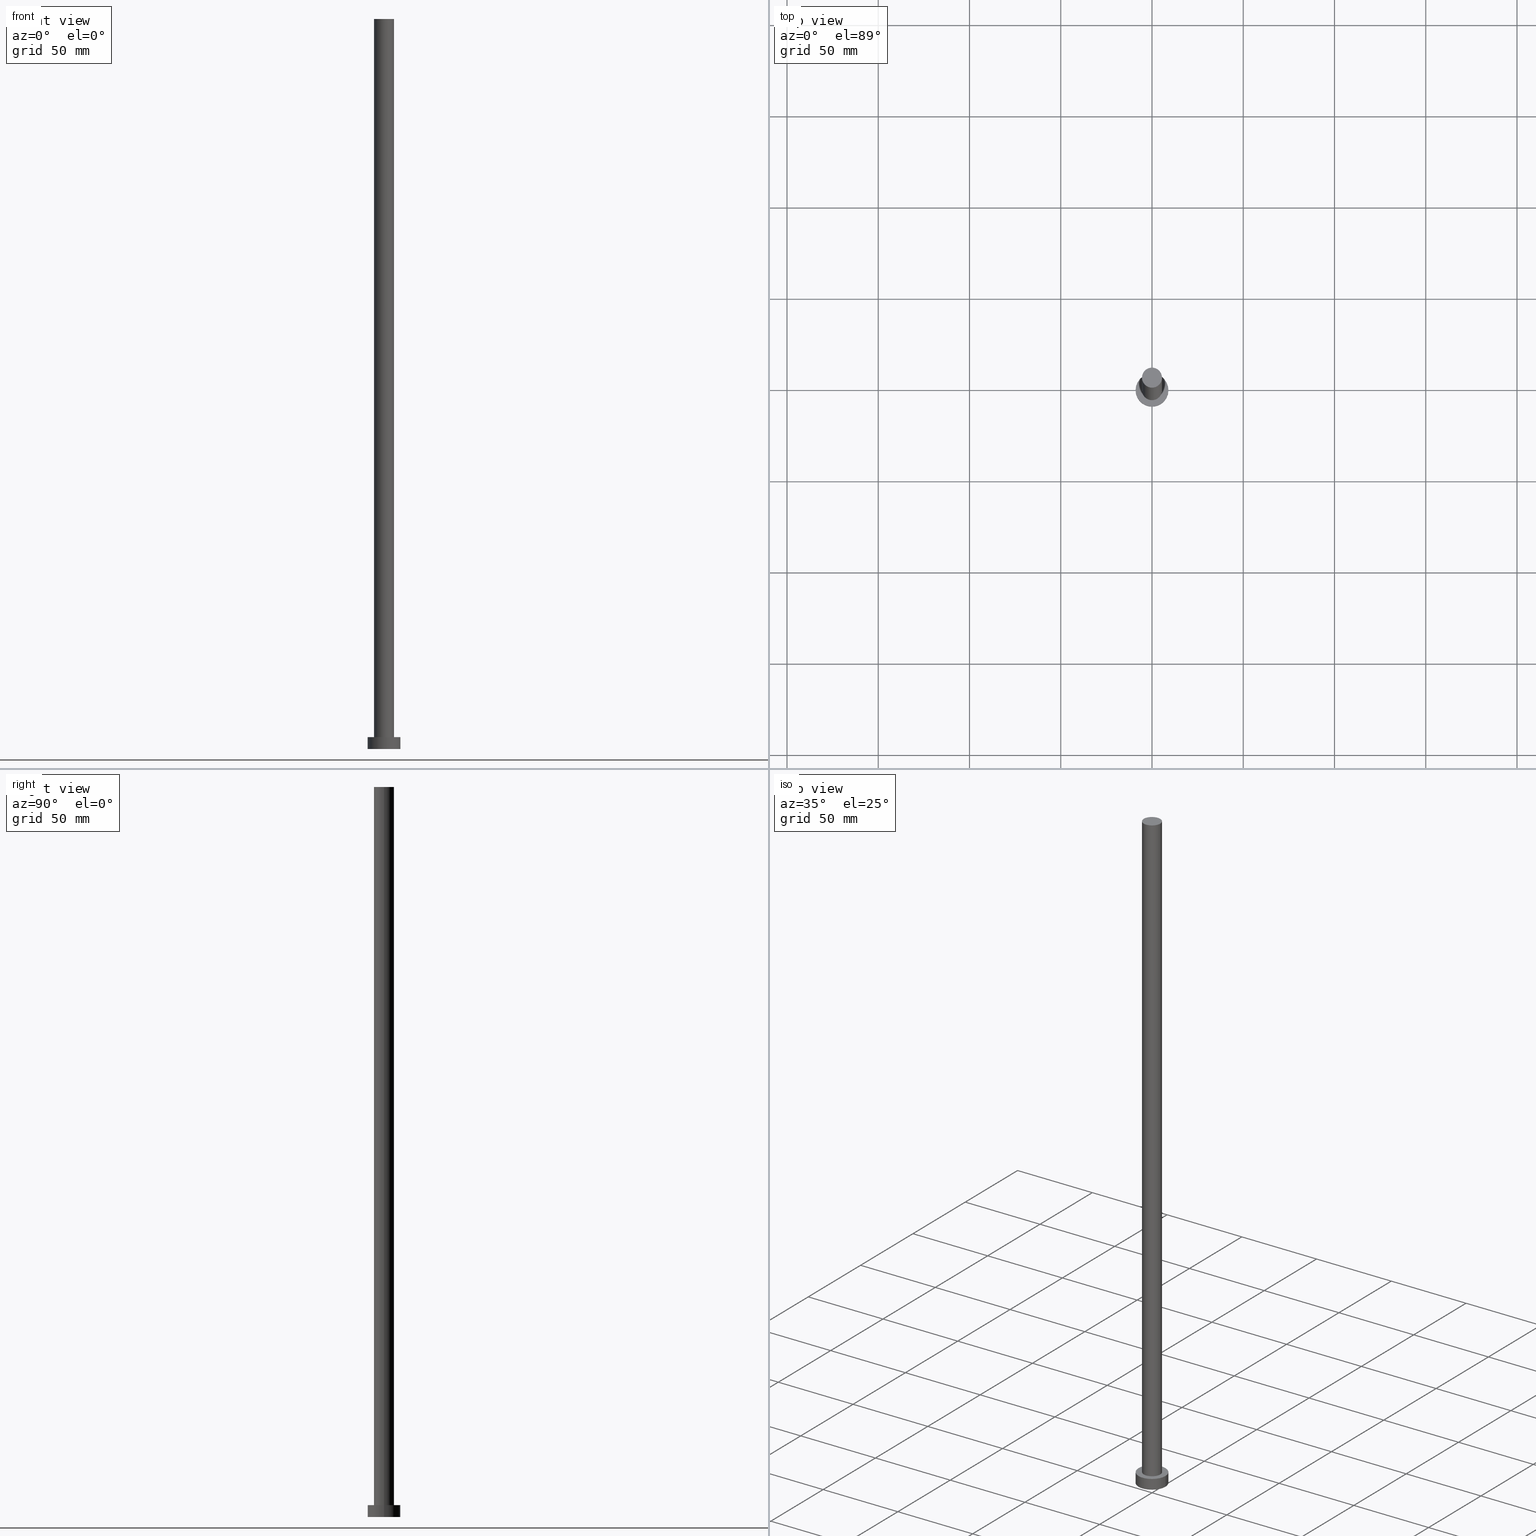
[diagram: canonical four-view strip — front | top / right | iso, engineering-drawing reading convention]
A machine part, canonical four-view strip (front | top / right | iso — engineering-drawing reading convention). The complete STEP part file that produces these views, byte-faithful:
ISO-10303-21;
HEADER;
FILE_DESCRIPTION (( 'STEP AP203' ),
    '1' );
FILE_NAME ('4d61.STEP',
    '2023-02-13T12:19:27',
    ( '' ),
    ( '' ),
    'SwSTEP 2.0',
    'SolidWorks 2019',
    '' );
FILE_SCHEMA (( 'CONFIG_CONTROL_DESIGN' ));
ENDSEC;

DATA;
#1 = DIRECTION ( 'NONE',  ( 0.000000000000000000, 0.000000000000000000, 1.000000000000000000 ) ) ;
#2 = FACE_OUTER_BOUND ( 'NONE', #40, .T. ) ;
#3 = DATE_AND_TIME ( #153, #112 ) ;
#4 = CARTESIAN_POINT ( 'NONE',  ( 5.500000000000000000, 6.735557395310442023E-16, 400.0000000000000000 ) ) ;
#5 = AXIS2_PLACEMENT_3D ( 'NONE', #186, #79, #164 ) ;
#6 = CARTESIAN_POINT ( 'NONE',  ( 0.000000000000000000, 0.000000000000000000, 400.0000000000000000 ) ) ;
#7 = APPROVAL_STATUS ( 'not_yet_approved' ) ;
#8 = DIRECTION ( 'NONE',  ( 1.000000000000000000, 0.000000000000000000, 0.000000000000000000 ) ) ;
#9 = ADVANCED_FACE ( 'NONE', ( #75 ), #19, .T. ) ;
#10 = DATE_AND_TIME ( #224, #39 ) ;
#11 = APPLICATION_PROTOCOL_DEFINITION ( 'international standard', 'config_control_design', 1994, #95 ) ;
#12 = CARTESIAN_POINT ( 'NONE',  ( 0.000000000000000000, 0.000000000000000000, 0.000000000000000000 ) ) ;
#13 = APPROVAL_PERSON_ORGANIZATION ( #122, #183, #48 ) ;
#14 = FACE_OUTER_BOUND ( 'NONE', #108, .T. ) ;
#15 = EDGE_CURVE ( 'NONE', #157, #49, #152, .T. ) ;
#16 = ORIENTED_EDGE ( 'NONE', *, *, #221, .T. ) ;
#17 = ORIENTED_EDGE ( 'NONE', *, *, #202, .F. ) ;
#18 = AXIS2_PLACEMENT_3D ( 'NONE', #116, #239, #103 ) ;
#19 = CYLINDRICAL_SURFACE ( 'NONE', #238, 9.000000000000000000 ) ;
#20 = EDGE_CURVE ( 'NONE', #70, #63, #139, .T. ) ;
#21 = DIRECTION ( 'NONE',  ( -0.000000000000000000, -0.000000000000000000, -1.000000000000000000 ) ) ;
#22 = EDGE_CURVE ( 'NONE', #193, #70, #34, .T. ) ;
#23 = DIRECTION ( 'NONE',  ( 0.000000000000000000, 0.000000000000000000, 1.000000000000000000 ) ) ;
#24 = CC_DESIGN_APPROVAL ( #92, ( #71 ) ) ;
#25 = CARTESIAN_POINT ( 'NONE',  ( 0.000000000000000000, 0.000000000000000000, 6.500000000000000000 ) ) ;
#26 = ORIENTED_EDGE ( 'NONE', *, *, #44, .T. ) ;
#27 = COORDINATED_UNIVERSAL_TIME_OFFSET ( 1, 0, .AHEAD. ) ;
#28 = DIRECTION ( 'NONE',  ( 1.000000000000000000, 0.000000000000000000, 0.000000000000000000 ) ) ;
#29 = AXIS2_PLACEMENT_3D ( 'NONE', #67, #190, #8 ) ;
#30 = CALENDAR_DATE ( 2023, 13, 2 ) ;
#31 = CARTESIAN_POINT ( 'NONE',  ( 0.000000000000000000, 0.000000000000000000, 0.000000000000000000 ) ) ;
#32 = APPROVAL_STATUS ( 'not_yet_approved' ) ;
#33 = AXIS2_PLACEMENT_3D ( 'NONE', #138, #21, #217 ) ;
#34 = LINE ( 'NONE', #194, #254 ) ;
#35 = CIRCLE ( 'NONE', #115, 5.500000000000000000 ) ;
#36 = EDGE_LOOP ( 'NONE', ( #93, #165, #146, #80 ) ) ;
#37 = DIRECTION ( 'NONE',  ( -0.000000000000000000, -0.000000000000000000, -1.000000000000000000 ) ) ;
#38 = CIRCLE ( 'NONE', #117, 5.500000000000000000 ) ;
#39 = LOCAL_TIME ( 13, 19, 27.00000000000000000, #247 ) ;
#40 = EDGE_LOOP ( 'NONE', ( #199, #55 ) ) ;
#41 = CARTESIAN_POINT ( 'NONE',  ( -9.000000000000000000, 0.000000000000000000, 0.000000000000000000 ) ) ;
#42 = ADVANCED_FACE ( 'NONE', ( #14 ), #179, .F. ) ;
#43 = DIRECTION ( 'NONE',  ( -0.000000000000000000, -0.000000000000000000, -1.000000000000000000 ) ) ;
#44 = EDGE_CURVE ( 'NONE', #54, #193, #38, .T. ) ;
#45 = ORIENTED_EDGE ( 'NONE', *, *, #188, .T. ) ;
#46 = APPROVAL_ROLE ( '' ) ;
#47 = DIRECTION ( 'NONE',  ( 0.000000000000000000, 0.000000000000000000, 1.000000000000000000 ) ) ;
#48 = APPROVAL_ROLE ( '' ) ;
#49 = VERTEX_POINT ( 'NONE', #156 ) ;
#50 = DIRECTION ( 'NONE',  ( 1.000000000000000000, 0.000000000000000000, 0.000000000000000000 ) ) ;
#51 =( NAMED_UNIT ( * ) SI_UNIT ( $, .STERADIAN. ) SOLID_ANGLE_UNIT ( ) );
#52 = CARTESIAN_POINT ( 'NONE',  ( -5.500000000000000000, 0.000000000000000000, 400.0000000000000000 ) ) ;
#53 = DIRECTION ( 'NONE',  ( 1.000000000000000000, 0.000000000000000000, 0.000000000000000000 ) ) ;
#54 = VERTEX_POINT ( 'NONE', #52 ) ;
#55 = ORIENTED_EDGE ( 'NONE', *, *, #246, .T. ) ;
#56 = PLANE ( 'NONE',  #171 ) ;
#57 = MANIFOLD_SOLID_BREP ( 'P�idat vysunut�m3', #219 ) ;
#58 = CYLINDRICAL_SURFACE ( 'NONE', #33, 9.000000000000000000 ) ;
#59 = CARTESIAN_POINT ( 'NONE',  ( 0.000000000000000000, 0.000000000000000000, 400.0000000000000000 ) ) ;
#60 = EDGE_CURVE ( 'NONE', #177, #49, #130, .T. ) ;
#61 = DATE_TIME_ROLE ( 'creation_date' ) ;
#62 = APPROVAL_PERSON_ORGANIZATION ( #210, #109, #68 ) ;
#63 = VERTEX_POINT ( 'NONE', #96 ) ;
#64 = PERSON_AND_ORGANIZATION_ROLE ( 'creator' ) ;
#65 = ADVANCED_FACE ( 'NONE', ( #137 ), #56, .T. ) ;
#66 = PERSON_AND_ORGANIZATION_ROLE ( 'classification_officer' ) ;
#67 = CARTESIAN_POINT ( 'NONE',  ( 0.000000000000000000, 0.000000000000000000, 0.000000000000000000 ) ) ;
#68 = APPROVAL_ROLE ( '' ) ;
#69 = DIRECTION ( 'NONE',  ( 0.000000000000000000, 0.000000000000000000, 1.000000000000000000 ) ) ;
#70 = VERTEX_POINT ( 'NONE', #76 ) ;
#71 = SECURITY_CLASSIFICATION ( '', '', #206 ) ;
#72 = DIRECTION ( 'NONE',  ( 1.000000000000000000, 0.000000000000000000, 0.000000000000000000 ) ) ;
#73 = ORIENTED_EDGE ( 'NONE', *, *, #107, .F. ) ;
#74 = DIRECTION ( 'NONE',  ( 0.000000000000000000, 0.000000000000000000, 1.000000000000000000 ) ) ;
#75 = FACE_OUTER_BOUND ( 'NONE', #121, .T. ) ;
#76 = CARTESIAN_POINT ( 'NONE',  ( 5.500000000000000000, 6.735557395310442023E-16, 6.500000000000000000 ) ) ;
#77 = DIRECTION ( 'NONE',  ( 1.000000000000000000, 0.000000000000000000, -0.000000000000000000 ) ) ;
#78 = CARTESIAN_POINT ( 'NONE',  ( -9.000000000000000000, 0.000000000000000000, 6.500000000000000000 ) ) ;
#79 = DIRECTION ( 'NONE',  ( 0.000000000000000000, 0.000000000000000000, 1.000000000000000000 ) ) ;
#80 = ORIENTED_EDGE ( 'NONE', *, *, #15, .T. ) ;
#81 = PERSON_AND_ORGANIZATION_ROLE ( 'design_supplier' ) ;
#82 = CC_DESIGN_SECURITY_CLASSIFICATION ( #71, ( #135 ) ) ;
#83 = COORDINATED_UNIVERSAL_TIME_OFFSET ( 1, 0, .AHEAD. ) ;
#84 = APPLICATION_CONTEXT ( 'configuration controlled 3d designs of mechanical parts and assemblies' ) ;
#85 = DIRECTION ( 'NONE',  ( -0.000000000000000000, -0.000000000000000000, -1.000000000000000000 ) ) ;
#86 = SHAPE_DEFINITION_REPRESENTATION ( #228, #97 ) ;
#87 =( NAMED_UNIT ( * ) PLANE_ANGLE_UNIT ( ) SI_UNIT ( $, .RADIAN. ) );
#88 = CARTESIAN_POINT ( 'NONE',  ( 0.000000000000000000, 0.000000000000000000, 6.500000000000000000 ) ) ;
#89 = ADVANCED_FACE ( 'NONE', ( #201 ), #58, .T. ) ;
#90 = DIRECTION ( 'NONE',  ( 1.000000000000000000, 0.000000000000000000, -0.000000000000000000 ) ) ;
#91 = DIRECTION ( 'NONE',  ( -0.000000000000000000, -0.000000000000000000, -1.000000000000000000 ) ) ;
#92 = APPROVAL ( #7, 'NEUR�EN�' ) ;
#93 = ORIENTED_EDGE ( 'NONE', *, *, #60, .F. ) ;
#94 =( GEOMETRIC_REPRESENTATION_CONTEXT ( 3 ) GLOBAL_UNCERTAINTY_ASSIGNED_CONTEXT ( ( #148 ) ) GLOBAL_UNIT_ASSIGNED_CONTEXT ( ( #155, #87, #51 ) ) REPRESENTATION_CONTEXT ( 'NONE', 'WORKASPACE' ) );
#95 = APPLICATION_CONTEXT ( 'configuration controlled 3d designs of mechanical parts and assemblies' ) ;
#96 = CARTESIAN_POINT ( 'NONE',  ( -5.500000000000000000, 0.000000000000000000, 6.500000000000000000 ) ) ;
#97 = ADVANCED_BREP_SHAPE_REPRESENTATION ( '4d61', ( #57, #144 ), #94 ) ;
#98 = CYLINDRICAL_SURFACE ( 'NONE', #181, 5.500000000000000000 ) ;
#99 = PRODUCT_RELATED_PRODUCT_CATEGORY ( 'detail', '', ( #198 ) ) ;
#100 = AXIS2_PLACEMENT_3D ( 'NONE', #88, #154, #50 ) ;
#101 = CARTESIAN_POINT ( 'NONE',  ( -5.500000000000000000, 0.000000000000000000, 400.0000000000000000 ) ) ;
#102 = VERTEX_POINT ( 'NONE', #78 ) ;
#103 = DIRECTION ( 'NONE',  ( 1.000000000000000000, 0.000000000000000000, 0.000000000000000000 ) ) ;
#104 = PERSON_AND_ORGANIZATION ( #251, #248 ) ;
#105 = PERSON_AND_ORGANIZATION ( #251, #248 ) ;
#106 = DIRECTION ( 'NONE',  ( 0.000000000000000000, 0.000000000000000000, 1.000000000000000000 ) ) ;
#107 = EDGE_CURVE ( 'NONE', #102, #157, #114, .T. ) ;
#108 = EDGE_LOOP ( 'NONE', ( #180, #17 ) ) ;
#109 = APPROVAL ( #32, 'NEUR�EN�' ) ;
#110 = EDGE_LOOP ( 'NONE', ( #134, #123, #133, #16 ) ) ;
#111 = ORIENTED_EDGE ( 'NONE', *, *, #202, .T. ) ;
#112 = LOCAL_TIME ( 13, 19, 27.00000000000000000, #166 ) ;
#113 = DIRECTION ( 'NONE',  ( -1.000000000000000000, 0.000000000000000000, 0.000000000000000000 ) ) ;
#114 = LINE ( 'NONE', #141, #142 ) ;
#115 = AXIS2_PLACEMENT_3D ( 'NONE', #25, #23, #28 ) ;
#116 = CARTESIAN_POINT ( 'NONE',  ( 0.000000000000000000, 0.000000000000000000, 400.0000000000000000 ) ) ;
#117 = AXIS2_PLACEMENT_3D ( 'NONE', #250, #74, #53 ) ;
#118 = LOCAL_TIME ( 13, 19, 27.00000000000000000, #83 ) ;
#119 = DIRECTION ( 'NONE',  ( -0.000000000000000000, -0.000000000000000000, -1.000000000000000000 ) ) ;
#120 = CC_DESIGN_PERSON_AND_ORGANIZATION_ASSIGNMENT ( #169, #64, ( #135 ) ) ;
#121 = EDGE_LOOP ( 'NONE', ( #235, #216, #111, #73 ) ) ;
#122 = PERSON_AND_ORGANIZATION ( #251, #248 ) ;
#123 = ORIENTED_EDGE ( 'NONE', *, *, #44, .F. ) ;
#124 = COORDINATED_UNIVERSAL_TIME_OFFSET ( 1, 0, .AHEAD. ) ;
#125 = DIRECTION ( 'NONE',  ( -1.000000000000000000, 0.000000000000000000, 0.000000000000000000 ) ) ;
#126 = AXIS2_PLACEMENT_3D ( 'NONE', #225, #47, #170 ) ;
#127 = APPROVAL_DATE_TIME ( #168, #183 ) ;
#128 = PERSON_AND_ORGANIZATION_ROLE ( 'design_owner' ) ;
#129 = APPLICATION_PROTOCOL_DEFINITION ( 'international standard', 'config_control_design', 1994, #84 ) ;
#130 = LINE ( 'NONE', #132, #245 ) ;
#131 = CC_DESIGN_APPROVAL ( #183, ( #135 ) ) ;
#132 = CARTESIAN_POINT ( 'NONE',  ( 9.000000000000000000, 1.102182119232617517E-15, 6.500000000000000000 ) ) ;
#133 = ORIENTED_EDGE ( 'NONE', *, *, #200, .T. ) ;
#134 = ORIENTED_EDGE ( 'NONE', *, *, #22, .F. ) ;
#135 = PRODUCT_DEFINITION_FORMATION_WITH_SPECIFIED_SOURCE ( 'LIBOVOLN�', '', #198, .NOT_KNOWN. ) ;
#136 = CC_DESIGN_PERSON_AND_ORGANIZATION_ASSIGNMENT ( #209, #81, ( #135 ) ) ;
#137 = FACE_OUTER_BOUND ( 'NONE', #214, .T. ) ;
#138 = CARTESIAN_POINT ( 'NONE',  ( 0.000000000000000000, 0.000000000000000000, 6.500000000000000000 ) ) ;
#139 = CIRCLE ( 'NONE', #100, 5.500000000000000000 ) ;
#140 = PRODUCT_DEFINITION ( 'NEZN�M�', '', #135, #187 ) ;
#141 = CARTESIAN_POINT ( 'NONE',  ( -9.000000000000000000, 0.000000000000000000, 6.500000000000000000 ) ) ;
#142 = VECTOR ( 'NONE', #218, 1000.000000000000000 ) ;
#143 = DATE_AND_TIME ( #172, #118 ) ;
#144 = AXIS2_PLACEMENT_3D ( 'NONE', #31, #106, #72 ) ;
#145 = CC_DESIGN_PERSON_AND_ORGANIZATION_ASSIGNMENT ( #222, #66, ( #71 ) ) ;
#146 = ORIENTED_EDGE ( 'NONE', *, *, #107, .T. ) ;
#147 = PERSON_AND_ORGANIZATION_ROLE ( 'creator' ) ;
#148 = UNCERTAINTY_MEASURE_WITH_UNIT (LENGTH_MEASURE( 1.000000000000000082E-05 ), #155, 'distance_accuracy_value', 'NONE');
#149 = APPROVAL_DATE_TIME ( #3, #109 ) ;
#150 = CYLINDRICAL_SURFACE ( 'NONE', #174, 5.500000000000000000 ) ;
#151 = CC_DESIGN_PERSON_AND_ORGANIZATION_ASSIGNMENT ( #192, #128, ( #198 ) ) ;
#152 = CIRCLE ( 'NONE', #253, 9.000000000000000000 ) ;
#153 = CALENDAR_DATE ( 2023, 13, 2 ) ;
#154 = DIRECTION ( 'NONE',  ( 0.000000000000000000, 0.000000000000000000, 1.000000000000000000 ) ) ;
#155 =( LENGTH_UNIT ( ) NAMED_UNIT ( * ) SI_UNIT ( .MILLI., .METRE. ) );
#156 = CARTESIAN_POINT ( 'NONE',  ( 9.000000000000000000, 1.102182119232617517E-15, 0.000000000000000000 ) ) ;
#157 = VERTEX_POINT ( 'NONE', #41 ) ;
#158 = APPROVAL_PERSON_ORGANIZATION ( #104, #92, #46 ) ;
#159 = EDGE_LOOP ( 'NONE', ( #215, #197 ) ) ;
#160 = CC_DESIGN_DATE_AND_TIME_ASSIGNMENT ( #143, #61, ( #140 ) ) ;
#161 = CIRCLE ( 'NONE', #29, 9.000000000000000000 ) ;
#162 = CC_DESIGN_DATE_AND_TIME_ASSIGNMENT ( #191, #167, ( #71 ) ) ;
#163 = CARTESIAN_POINT ( 'NONE',  ( 9.000000000000000000, 1.102182119232617517E-15, 6.500000000000000000 ) ) ;
#164 = DIRECTION ( 'NONE',  ( 1.000000000000000000, 0.000000000000000000, 0.000000000000000000 ) ) ;
#165 = ORIENTED_EDGE ( 'NONE', *, *, #255, .F. ) ;
#166 = COORDINATED_UNIVERSAL_TIME_OFFSET ( 1, 0, .AHEAD. ) ;
#167 = DATE_TIME_ROLE ( 'classification_date' ) ;
#168 = DATE_AND_TIME ( #226, #240 ) ;
#169 = PERSON_AND_ORGANIZATION ( #251, #248 ) ;
#170 = DIRECTION ( 'NONE',  ( 1.000000000000000000, 0.000000000000000000, -0.000000000000000000 ) ) ;
#171 = AXIS2_PLACEMENT_3D ( 'NONE', #237, #1, #77 ) ;
#172 = CALENDAR_DATE ( 2023, 13, 2 ) ;
#173 = MECHANICAL_CONTEXT ( 'NONE', #84, 'mechanical' ) ;
#174 = AXIS2_PLACEMENT_3D ( 'NONE', #6, #85, #125 ) ;
#175 = ADVANCED_FACE ( 'NONE', ( #220 ), #98, .T. ) ;
#176 = ORIENTED_EDGE ( 'NONE', *, *, #188, .F. ) ;
#177 = VERTEX_POINT ( 'NONE', #163 ) ;
#178 = AXIS2_PLACEMENT_3D ( 'NONE', #231, #252, #90 ) ;
#179 = PLANE ( 'NONE',  #178 ) ;
#180 = ORIENTED_EDGE ( 'NONE', *, *, #15, .F. ) ;
#181 = AXIS2_PLACEMENT_3D ( 'NONE', #59, #43, #184 ) ;
#182 = AXIS2_PLACEMENT_3D ( 'NONE', #243, #69, #229 ) ;
#183 = APPROVAL ( #205, 'NEUR�EN�' ) ;
#184 = DIRECTION ( 'NONE',  ( -1.000000000000000000, 0.000000000000000000, 0.000000000000000000 ) ) ;
#185 = CIRCLE ( 'NONE', #5, 9.000000000000000000 ) ;
#186 = CARTESIAN_POINT ( 'NONE',  ( 0.000000000000000000, 0.000000000000000000, 6.500000000000000000 ) ) ;
#187 = DESIGN_CONTEXT ( 'detailed design', #95, 'design' ) ;
#188 = EDGE_CURVE ( 'NONE', #193, #54, #212, .T. ) ;
#189 = FACE_OUTER_BOUND ( 'NONE', #110, .T. ) ;
#190 = DIRECTION ( 'NONE',  ( 0.000000000000000000, 0.000000000000000000, 1.000000000000000000 ) ) ;
#191 = DATE_AND_TIME ( #30, #203 ) ;
#192 = PERSON_AND_ORGANIZATION ( #251, #248 ) ;
#193 = VERTEX_POINT ( 'NONE', #4 ) ;
#194 = CARTESIAN_POINT ( 'NONE',  ( 5.500000000000000000, 6.735557395310442023E-16, 400.0000000000000000 ) ) ;
#195 = CC_DESIGN_PERSON_AND_ORGANIZATION_ASSIGNMENT ( #105, #147, ( #140 ) ) ;
#196 = ORIENTED_EDGE ( 'NONE', *, *, #200, .F. ) ;
#197 = ORIENTED_EDGE ( 'NONE', *, *, #20, .F. ) ;
#198 = PRODUCT ( '4d61', '4d61', '', ( #173 ) ) ;
#199 = ORIENTED_EDGE ( 'NONE', *, *, #255, .T. ) ;
#200 = EDGE_CURVE ( 'NONE', #54, #63, #204, .T. ) ;
#201 = FACE_OUTER_BOUND ( 'NONE', #36, .T. ) ;
#202 = EDGE_CURVE ( 'NONE', #49, #157, #161, .T. ) ;
#203 = LOCAL_TIME ( 13, 19, 27.00000000000000000, #124 ) ;
#204 = LINE ( 'NONE', #101, #227 ) ;
#205 = APPROVAL_STATUS ( 'not_yet_approved' ) ;
#206 = SECURITY_CLASSIFICATION_LEVEL ( 'unclassified' ) ;
#207 = CIRCLE ( 'NONE', #182, 9.000000000000000000 ) ;
#208 = PLANE ( 'NONE',  #126 ) ;
#209 = PERSON_AND_ORGANIZATION ( #251, #248 ) ;
#210 = PERSON_AND_ORGANIZATION ( #251, #248 ) ;
#211 = DIRECTION ( 'NONE',  ( 0.000000000000000000, 0.000000000000000000, 1.000000000000000000 ) ) ;
#212 = CIRCLE ( 'NONE', #18, 5.500000000000000000 ) ;
#213 = CC_DESIGN_APPROVAL ( #109, ( #140 ) ) ;
#214 = EDGE_LOOP ( 'NONE', ( #26, #45 ) ) ;
#215 = ORIENTED_EDGE ( 'NONE', *, *, #221, .F. ) ;
#216 = ORIENTED_EDGE ( 'NONE', *, *, #60, .T. ) ;
#217 = DIRECTION ( 'NONE',  ( -1.000000000000000000, 0.000000000000000000, 0.000000000000000000 ) ) ;
#218 = DIRECTION ( 'NONE',  ( -0.000000000000000000, -0.000000000000000000, -1.000000000000000000 ) ) ;
#219 = CLOSED_SHELL ( 'NONE', ( #175, #9, #89, #233, #42, #230, #65 ) ) ;
#220 = FACE_OUTER_BOUND ( 'NONE', #244, .T. ) ;
#221 = EDGE_CURVE ( 'NONE', #63, #70, #35, .T. ) ;
#222 = PERSON_AND_ORGANIZATION ( #251, #248 ) ;
#223 = ORIENTED_EDGE ( 'NONE', *, *, #20, .T. ) ;
#224 = CALENDAR_DATE ( 2023, 13, 2 ) ;
#225 = CARTESIAN_POINT ( 'NONE',  ( 0.000000000000000000, 0.000000000000000000, 6.500000000000000000 ) ) ;
#226 = CALENDAR_DATE ( 2023, 13, 2 ) ;
#227 = VECTOR ( 'NONE', #119, 1000.000000000000000 ) ;
#228 = PRODUCT_DEFINITION_SHAPE ( 'NONE', 'NONE',  #140 ) ;
#229 = DIRECTION ( 'NONE',  ( 1.000000000000000000, 0.000000000000000000, 0.000000000000000000 ) ) ;
#230 = ADVANCED_FACE ( 'NONE', ( #189 ), #150, .T. ) ;
#231 = CARTESIAN_POINT ( 'NONE',  ( 0.000000000000000000, 0.000000000000000000, 0.000000000000000000 ) ) ;
#232 = ORIENTED_EDGE ( 'NONE', *, *, #22, .T. ) ;
#233 = ADVANCED_FACE ( 'NONE', ( #241, #2 ), #208, .T. ) ;
#234 = DIRECTION ( 'NONE',  ( 1.000000000000000000, 0.000000000000000000, 0.000000000000000000 ) ) ;
#235 = ORIENTED_EDGE ( 'NONE', *, *, #246, .F. ) ;
#236 = DIRECTION ( 'NONE',  ( -0.000000000000000000, -0.000000000000000000, -1.000000000000000000 ) ) ;
#237 = CARTESIAN_POINT ( 'NONE',  ( 0.000000000000000000, 0.000000000000000000, 400.0000000000000000 ) ) ;
#238 = AXIS2_PLACEMENT_3D ( 'NONE', #249, #37, #113 ) ;
#239 = DIRECTION ( 'NONE',  ( 0.000000000000000000, 0.000000000000000000, 1.000000000000000000 ) ) ;
#240 = LOCAL_TIME ( 13, 19, 27.00000000000000000, #27 ) ;
#241 = FACE_BOUND ( 'NONE', #159, .T. ) ;
#242 = APPROVAL_DATE_TIME ( #10, #92 ) ;
#243 = CARTESIAN_POINT ( 'NONE',  ( 0.000000000000000000, 0.000000000000000000, 6.500000000000000000 ) ) ;
#244 = EDGE_LOOP ( 'NONE', ( #176, #232, #223, #196 ) ) ;
#245 = VECTOR ( 'NONE', #236, 1000.000000000000000 ) ;
#246 = EDGE_CURVE ( 'NONE', #177, #102, #207, .T. ) ;
#247 = COORDINATED_UNIVERSAL_TIME_OFFSET ( 1, 0, .AHEAD. ) ;
#248 = ORGANIZATION ( 'NEUR�EN�', 'NEUR�EN�', '' ) ;
#249 = CARTESIAN_POINT ( 'NONE',  ( 0.000000000000000000, 0.000000000000000000, 6.500000000000000000 ) ) ;
#250 = CARTESIAN_POINT ( 'NONE',  ( 0.000000000000000000, 0.000000000000000000, 400.0000000000000000 ) ) ;
#251 = PERSON ( 'NEUR�EN�', 'NEUR�EN�', 'NEUR�EN�', ('NEUR�EN�'), ('NEUR�EN�'), ('NEUR�EN�') ) ;
#252 = DIRECTION ( 'NONE',  ( 0.000000000000000000, 0.000000000000000000, 1.000000000000000000 ) ) ;
#253 = AXIS2_PLACEMENT_3D ( 'NONE', #12, #211, #234 ) ;
#254 = VECTOR ( 'NONE', #91, 1000.000000000000000 ) ;
#255 = EDGE_CURVE ( 'NONE', #102, #177, #185, .T. ) ;
ENDSEC;
END-ISO-10303-21;
